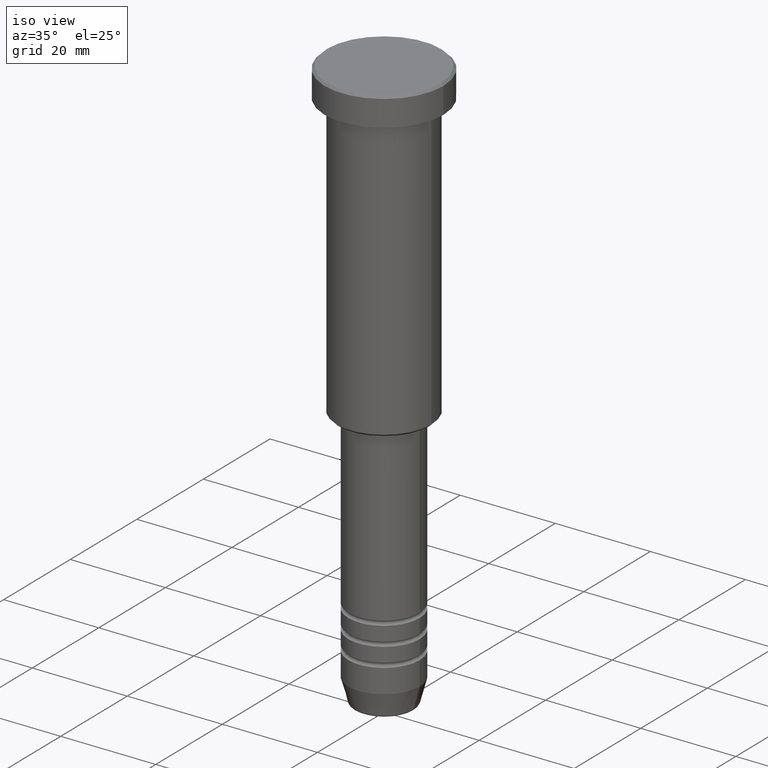
[diagram: clean part render]
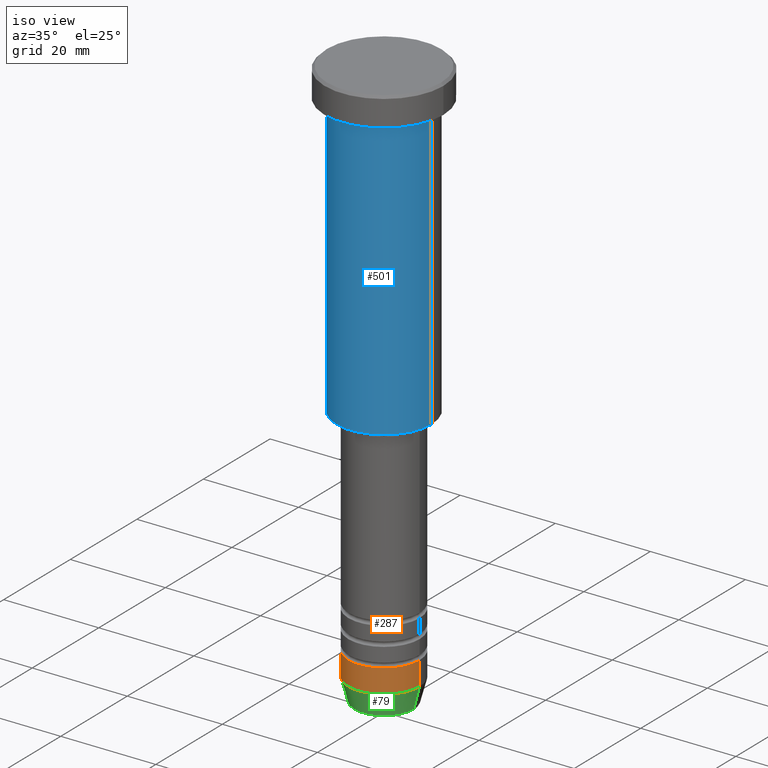
[diagram: same view with three faces highlighted in distinct colors, each labeled with its STEP entity id]
A machine part, iso view with three faces highlighted in distinct colors.
Their STEP definitions:

[orange] entity #287 — the highlighted cylindrical surface (partial cylindrical patch) has radius 7.5 mm, axis along (-0, -0, 1).
#22 = LINE ( 'NONE', #1120, #294 ) ;
#25 = EDGE_CURVE ( 'NONE', #694, #99, #77, .T. ) ;
#50 = CIRCLE ( 'NONE', #751, 7.500000000000000000 ) ;
#77 = LINE ( 'NONE', #174, #424 ) ;
#78 = VERTEX_POINT ( 'NONE', #1096 ) ;
#99 = VERTEX_POINT ( 'NONE', #155 ) ;
#115 = CARTESIAN_POINT ( 'NONE',  ( 0.000000000000000000, 0.000000000000000000, -111.0000000000000142 ) ) ;
#155 = CARTESIAN_POINT ( 'NONE',  ( 7.500000000000000000, 0.000000000000000000, -111.0000000000000142 ) ) ;
#174 = CARTESIAN_POINT ( 'NONE',  ( 7.500000000000000000, 0.000000000000000000, 0.000000000000000000 ) ) ;
#178 = ORIENTED_EDGE ( 'NONE', *, *, #661, .T. ) ;
#190 = CYLINDRICAL_SURFACE ( 'NONE', #1125, 7.500000000000000000 ) ;
#203 = CARTESIAN_POINT ( 'NONE',  ( 0.000000000000000000, 0.000000000000000000, 0.000000000000000000 ) ) ;
#212 = DIRECTION ( 'NONE',  ( 1.000000000000000000, 0.000000000000000000, 0.000000000000000000 ) ) ;
#276 = EDGE_CURVE ( 'NONE', #621, #78, #22, .T. ) ;
#287 = ADVANCED_FACE ( 'NONE', ( #1022 ), #190, .T. ) ;
#292 = DIRECTION ( 'NONE',  ( -0.000000000000000000, -0.000000000000000000, 1.000000000000000000 ) ) ;
#294 = VECTOR ( 'NONE', #292, 1000.000000000000000 ) ;
#367 = CARTESIAN_POINT ( 'NONE',  ( 7.500000000000000000, 0.000000000000000000, -116.0000000000000000 ) ) ;
#382 = DIRECTION ( 'NONE',  ( 1.000000000000000000, 0.000000000000000000, 0.000000000000000000 ) ) ;
#410 = AXIS2_PLACEMENT_3D ( 'NONE', #934, #1025, #382 ) ;
#424 = VECTOR ( 'NONE', #532, 1000.000000000000000 ) ;
#464 = ORIENTED_EDGE ( 'NONE', *, *, #276, .F. ) ;
#518 = ORIENTED_EDGE ( 'NONE', *, *, #885, .F. ) ;
#532 = DIRECTION ( 'NONE',  ( -0.000000000000000000, -0.000000000000000000, 1.000000000000000000 ) ) ;
#563 = DIRECTION ( 'NONE',  ( -0.000000000000000000, -0.000000000000000000, 1.000000000000000000 ) ) ;
#578 = DIRECTION ( 'NONE',  ( 1.000000000000000000, 0.000000000000000000, 0.000000000000000000 ) ) ;
#621 = VERTEX_POINT ( 'NONE', #911 ) ;
#661 = EDGE_CURVE ( 'NONE', #621, #694, #799, .T. ) ;
#694 = VERTEX_POINT ( 'NONE', #367 ) ;
#751 = AXIS2_PLACEMENT_3D ( 'NONE', #115, #1157, #212 ) ;
#799 = CIRCLE ( 'NONE', #410, 7.500000000000000000 ) ;
#816 = ORIENTED_EDGE ( 'NONE', *, *, #25, .T. ) ;
#885 = EDGE_CURVE ( 'NONE', #78, #99, #50, .T. ) ;
#911 = CARTESIAN_POINT ( 'NONE',  ( -7.500000000000000000, 9.184850993605147944E-16, -116.0000000000000000 ) ) ;
#934 = CARTESIAN_POINT ( 'NONE',  ( 0.000000000000000000, 0.000000000000000000, -116.0000000000000000 ) ) ;
#1022 = FACE_OUTER_BOUND ( 'NONE', #1158, .T. ) ;
#1025 = DIRECTION ( 'NONE',  ( -0.000000000000000000, -0.000000000000000000, 1.000000000000000000 ) ) ;
#1096 = CARTESIAN_POINT ( 'NONE',  ( -7.500000000000000000, 9.184850993605147944E-16, -111.0000000000000142 ) ) ;
#1120 = CARTESIAN_POINT ( 'NONE',  ( -7.500000000000000000, 9.184850993605147944E-16, 0.000000000000000000 ) ) ;
#1125 = AXIS2_PLACEMENT_3D ( 'NONE', #203, #563, #578 ) ;
#1157 = DIRECTION ( 'NONE',  ( -0.000000000000000000, -0.000000000000000000, 1.000000000000000000 ) ) ;
#1158 = EDGE_LOOP ( 'NONE', ( #464, #178, #816, #518 ) ) ;

[blue] entity #501 — the highlighted cylindrical surface (partial cylindrical patch) has radius 10 mm, axis along (-0, -0, 1).
#18 = CARTESIAN_POINT ( 'NONE',  ( 0.000000000000000000, 0.000000000000000000, -6.999999999999996447 ) ) ;
#23 = VERTEX_POINT ( 'NONE', #544 ) ;
#31 = AXIS2_PLACEMENT_3D ( 'NONE', #18, #737, #920 ) ;
#56 = EDGE_CURVE ( 'NONE', #259, #23, #528, .T. ) ;
#58 = DIRECTION ( 'NONE',  ( -1.000000000000000000, 0.000000000000000000, 0.000000000000000000 ) ) ;
#60 = DIRECTION ( 'NONE',  ( -0.000000000000000000, -0.000000000000000000, 1.000000000000000000 ) ) ;
#91 = EDGE_LOOP ( 'NONE', ( #929, #136, #1111, #266 ) ) ;
#123 = VECTOR ( 'NONE', #1103, 1000.000000000000000 ) ;
#136 = ORIENTED_EDGE ( 'NONE', *, *, #56, .T. ) ;
#140 = CIRCLE ( 'NONE', #31, 10.00000000000000000 ) ;
#240 = VECTOR ( 'NONE', #60, 1000.000000000000000 ) ;
#241 = FACE_OUTER_BOUND ( 'NONE', #91, .T. ) ;
#249 = EDGE_CURVE ( 'NONE', #775, #1043, #140, .T. ) ;
#259 = VERTEX_POINT ( 'NONE', #846 ) ;
#266 = ORIENTED_EDGE ( 'NONE', *, *, #249, .F. ) ;
#327 = CARTESIAN_POINT ( 'NONE',  ( 0.000000000000000000, 0.000000000000000000, -65.50000000000001421 ) ) ;
#330 = DIRECTION ( 'NONE',  ( -0.000000000000000000, -0.000000000000000000, 1.000000000000000000 ) ) ;
#338 = LINE ( 'NONE', #527, #240 ) ;
#375 = AXIS2_PLACEMENT_3D ( 'NONE', #794, #330, #882 ) ;
#423 = CARTESIAN_POINT ( 'NONE',  ( 10.00000000000000000, 0.000000000000000000, -6.999999999999996447 ) ) ;
#427 = DIRECTION ( 'NONE',  ( -0.000000000000000000, -0.000000000000000000, 1.000000000000000000 ) ) ;
#501 = ADVANCED_FACE ( 'NONE', ( #241 ), #1080, .T. ) ;
#527 = CARTESIAN_POINT ( 'NONE',  ( -10.00000000000000000, 1.224646799147353256E-15, 0.000000000000000000 ) ) ;
#528 = CIRCLE ( 'NONE', #706, 10.00000000000000000 ) ;
#544 = CARTESIAN_POINT ( 'NONE',  ( 10.00000000000000000, 0.000000000000000000, -65.50000000000001421 ) ) ;
#638 = EDGE_CURVE ( 'NONE', #23, #1043, #916, .T. ) ;
#706 = AXIS2_PLACEMENT_3D ( 'NONE', #327, #427, #58 ) ;
#737 = DIRECTION ( 'NONE',  ( -0.000000000000000000, -0.000000000000000000, 1.000000000000000000 ) ) ;
#740 = CARTESIAN_POINT ( 'NONE',  ( 10.00000000000000000, 0.000000000000000000, 0.000000000000000000 ) ) ;
#775 = VERTEX_POINT ( 'NONE', #946 ) ;
#794 = CARTESIAN_POINT ( 'NONE',  ( 0.000000000000000000, 0.000000000000000000, 0.000000000000000000 ) ) ;
#846 = CARTESIAN_POINT ( 'NONE',  ( -10.00000000000000000, 1.224646799147353256E-15, -65.50000000000001421 ) ) ;
#882 = DIRECTION ( 'NONE',  ( 1.000000000000000000, 0.000000000000000000, 0.000000000000000000 ) ) ;
#916 = LINE ( 'NONE', #740, #123 ) ;
#920 = DIRECTION ( 'NONE',  ( 1.000000000000000000, 0.000000000000000000, 0.000000000000000000 ) ) ;
#929 = ORIENTED_EDGE ( 'NONE', *, *, #1135, .F. ) ;
#946 = CARTESIAN_POINT ( 'NONE',  ( -10.00000000000000000, 1.224646799147353256E-15, -6.999999999999996447 ) ) ;
#1043 = VERTEX_POINT ( 'NONE', #423 ) ;
#1080 = CYLINDRICAL_SURFACE ( 'NONE', #375, 10.00000000000000000 ) ;
#1103 = DIRECTION ( 'NONE',  ( -0.000000000000000000, -0.000000000000000000, 1.000000000000000000 ) ) ;
#1111 = ORIENTED_EDGE ( 'NONE', *, *, #638, .T. ) ;
#1135 = EDGE_CURVE ( 'NONE', #259, #775, #338, .T. ) ;

[green] entity #79 — the highlighted conical surface has half-angle 15 deg.
#10 = LINE ( 'NONE', #89, #65 ) ;
#33 = DIRECTION ( 'NONE',  ( 0.2588190451025213501, 0.000000000000000000, 0.9659258262890680902 ) ) ;
#65 = VECTOR ( 'NONE', #477, 1000.000000000000000 ) ;
#79 = ADVANCED_FACE ( 'NONE', ( #524 ), #374, .T. ) ;
#89 = CARTESIAN_POINT ( 'NONE',  ( -7.500000000000000000, 9.184850993605147944E-16, -116.0000000000000000 ) ) ;
#98 = CARTESIAN_POINT ( 'NONE',  ( 0.000000000000000000, 0.000000000000000000, -120.6294095225512564 ) ) ;
#152 = EDGE_CURVE ( 'NONE', #793, #621, #10, .T. ) ;
#156 = ORIENTED_EDGE ( 'NONE', *, *, #196, .T. ) ;
#196 = EDGE_CURVE ( 'NONE', #793, #1023, #625, .T. ) ;
#198 = AXIS2_PLACEMENT_3D ( 'NONE', #730, #619, #242 ) ;
#242 = DIRECTION ( 'NONE',  ( 1.000000000000000000, 0.000000000000000000, 0.000000000000000000 ) ) ;
#284 = DIRECTION ( 'NONE',  ( 1.000000000000000000, 0.000000000000000000, 0.000000000000000000 ) ) ;
#288 = DIRECTION ( 'NONE',  ( -0.000000000000000000, -0.000000000000000000, 1.000000000000000000 ) ) ;
#299 = VECTOR ( 'NONE', #33, 1000.000000000000000 ) ;
#317 = LINE ( 'NONE', #884, #299 ) ;
#367 = CARTESIAN_POINT ( 'NONE',  ( 7.500000000000000000, 0.000000000000000000, -116.0000000000000000 ) ) ;
#374 = CONICAL_SURFACE ( 'NONE', #198, 7.500000000000000000, 0.2617993877991500740 ) ;
#382 = DIRECTION ( 'NONE',  ( 1.000000000000000000, 0.000000000000000000, 0.000000000000000000 ) ) ;
#410 = AXIS2_PLACEMENT_3D ( 'NONE', #934, #1025, #382 ) ;
#477 = DIRECTION ( 'NONE',  ( -0.2588190451025213501, 3.169619151431772337E-17, 0.9659258262890680902 ) ) ;
#505 = CARTESIAN_POINT ( 'NONE',  ( 6.259553456999438659, 0.000000000000000000, -120.6294095225512564 ) ) ;
#524 = FACE_OUTER_BOUND ( 'NONE', #1098, .T. ) ;
#605 = ORIENTED_EDGE ( 'NONE', *, *, #941, .T. ) ;
#619 = DIRECTION ( 'NONE',  ( -0.000000000000000000, -0.000000000000000000, 1.000000000000000000 ) ) ;
#621 = VERTEX_POINT ( 'NONE', #911 ) ;
#625 = CIRCLE ( 'NONE', #768, 6.259553456999438659 ) ;
#661 = EDGE_CURVE ( 'NONE', #621, #694, #799, .T. ) ;
#694 = VERTEX_POINT ( 'NONE', #367 ) ;
#730 = CARTESIAN_POINT ( 'NONE',  ( 0.000000000000000000, 0.000000000000000000, -116.0000000000000000 ) ) ;
#763 = CARTESIAN_POINT ( 'NONE',  ( -6.259553456999438659, 8.425296549405629486E-16, -120.6294095225512564 ) ) ;
#768 = AXIS2_PLACEMENT_3D ( 'NONE', #98, #288, #284 ) ;
#793 = VERTEX_POINT ( 'NONE', #763 ) ;
#799 = CIRCLE ( 'NONE', #410, 7.500000000000000000 ) ;
#884 = CARTESIAN_POINT ( 'NONE',  ( 7.500000000000000000, 0.000000000000000000, -116.0000000000000000 ) ) ;
#911 = CARTESIAN_POINT ( 'NONE',  ( -7.500000000000000000, 9.184850993605147944E-16, -116.0000000000000000 ) ) ;
#934 = CARTESIAN_POINT ( 'NONE',  ( 0.000000000000000000, 0.000000000000000000, -116.0000000000000000 ) ) ;
#941 = EDGE_CURVE ( 'NONE', #1023, #694, #317, .T. ) ;
#981 = ORIENTED_EDGE ( 'NONE', *, *, #152, .F. ) ;
#985 = ORIENTED_EDGE ( 'NONE', *, *, #661, .F. ) ;
#1023 = VERTEX_POINT ( 'NONE', #505 ) ;
#1025 = DIRECTION ( 'NONE',  ( -0.000000000000000000, -0.000000000000000000, 1.000000000000000000 ) ) ;
#1098 = EDGE_LOOP ( 'NONE', ( #981, #156, #605, #985 ) ) ;